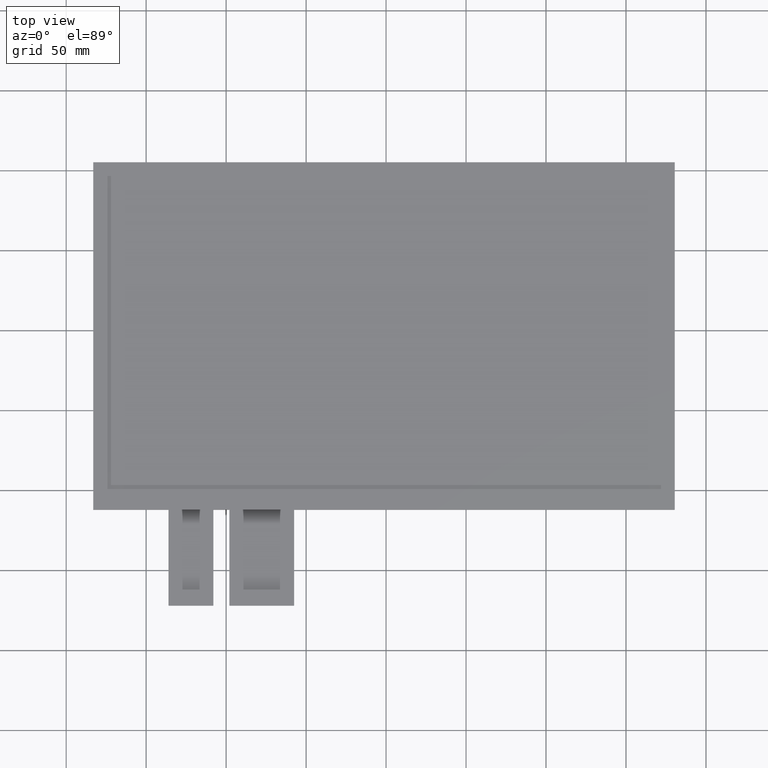
[diagram: clean part render]
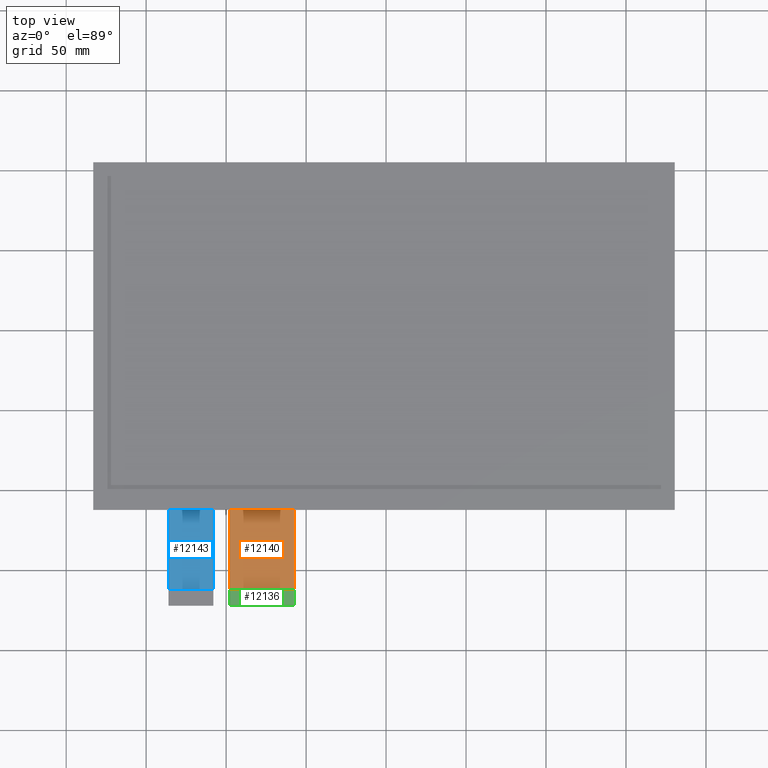
[diagram: same view with three faces highlighted in distinct colors, each labeled with its STEP entity id]
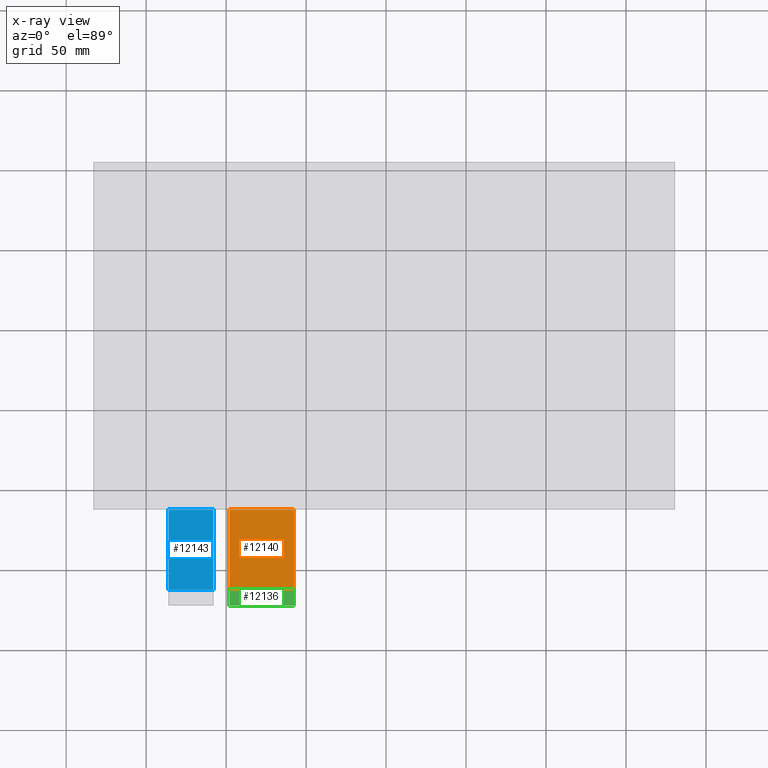
[diagram: x-ray of the same camera — body ghosted, the three highlighted faces saturated]
A machine part, top view with three faces highlighted in distinct colors.
The next image is the same camera in x-ray (body ghosted, the three faces saturated) — at least one of them is partly hidden behind the body in this view.
Their STEP definitions:

[orange] entity #12140 — the highlighted planar face has unit normal (0, 0, 1).
#682=PLANE('',#12746);
#1260=FACE_OUTER_BOUND('',#1838,.T.);
#1838=EDGE_LOOP('',(#11475,#11476,#11477,#11478));
#3514=LINE('',#18972,#5222);
#3517=LINE('',#18978,#5225);
#3527=LINE('',#18997,#5235);
#3528=LINE('',#18999,#5236);
#5222=VECTOR('',#15540,10.);
#5225=VECTOR('',#15545,10.);
#5235=VECTOR('',#15563,10.);
#5236=VECTOR('',#15566,10.);
#6396=VERTEX_POINT('',#18969);
#6397=VERTEX_POINT('',#18971);
#6399=VERTEX_POINT('',#18977);
#6404=VERTEX_POINT('',#18995);
#8090=EDGE_CURVE('',#6397,#6396,#3514,.T.);
#8093=EDGE_CURVE('',#6396,#6399,#3517,.T.);
#8103=EDGE_CURVE('',#6399,#6404,#3527,.T.);
#8104=EDGE_CURVE('',#6397,#6404,#3528,.T.);
#11475=ORIENTED_EDGE('',*,*,#8093,.T.);
#11476=ORIENTED_EDGE('',*,*,#8103,.T.);
#11477=ORIENTED_EDGE('',*,*,#8104,.F.);
#11478=ORIENTED_EDGE('',*,*,#8090,.T.);
#12140=ADVANCED_FACE('',(#1260),#682,.T.);
#12746=AXIS2_PLACEMENT_3D('',#18998,#15564,#15565);
#15540=DIRECTION('',(5.9211894646675E-16,-1.,0.));
#15545=DIRECTION('',(1.,0.,0.));
#15563=DIRECTION('',(4.44089209850063E-16,1.,0.));
#15564=DIRECTION('center_axis',(0.,0.,1.));
#15565=DIRECTION('ref_axis',(1.,0.,0.));
#15566=DIRECTION('',(1.,1.46564095660087E-16,0.));
#18969=CARTESIAN_POINT('',(-98.,-162.1,-1.1));
#18971=CARTESIAN_POINT('',(-98.,-112.1,-1.1));
#18972=CARTESIAN_POINT('',(-98.,-112.1,-1.1));
#18977=CARTESIAN_POINT('',(-57.5,-162.1,-1.1));
#18978=CARTESIAN_POINT('',(-67.625,-162.1,-1.1));
#18995=CARTESIAN_POINT('',(-57.4999999999999,-112.1,-1.1));
#18997=CARTESIAN_POINT('',(-57.4999999999999,-172.1,-1.1));
#18998=CARTESIAN_POINT('Origin',(-77.7499999999999,-142.1,-1.1));
#18999=CARTESIAN_POINT('',(51.3750000000001,-112.1,-1.1));

[blue] entity #12143 — the highlighted planar face has unit normal (0, 0, 1).
#685=PLANE('',#12749);
#1263=FACE_OUTER_BOUND('',#1841,.T.);
#1841=EDGE_LOOP('',(#11491,#11492,#11493,#11494));
#3506=LINE('',#18956,#5214);
#3521=LINE('',#18986,#5229);
#3532=LINE('',#19007,#5240);
#3533=LINE('',#19009,#5241);
#5214=VECTOR('',#15528,10.);
#5229=VECTOR('',#15553,10.);
#5240=VECTOR('',#15574,10.);
#5241=VECTOR('',#15577,10.);
#6390=VERTEX_POINT('',#18953);
#6391=VERTEX_POINT('',#18955);
#6401=VERTEX_POINT('',#18985);
#6406=VERTEX_POINT('',#19005);
#8082=EDGE_CURVE('',#6391,#6390,#3506,.T.);
#8097=EDGE_CURVE('',#6390,#6401,#3521,.T.);
#8108=EDGE_CURVE('',#6401,#6406,#3532,.T.);
#8109=EDGE_CURVE('',#6391,#6406,#3533,.T.);
#11491=ORIENTED_EDGE('',*,*,#8097,.T.);
#11492=ORIENTED_EDGE('',*,*,#8108,.T.);
#11493=ORIENTED_EDGE('',*,*,#8109,.F.);
#11494=ORIENTED_EDGE('',*,*,#8082,.T.);
#12143=ADVANCED_FACE('',(#1263),#685,.T.);
#12749=AXIS2_PLACEMENT_3D('',#19008,#15575,#15576);
#15528=DIRECTION('',(1.77635683940025E-15,-1.,0.));
#15553=DIRECTION('',(1.,0.,0.));
#15574=DIRECTION('',(-8.88178419700125E-16,1.,0.));
#15575=DIRECTION('center_axis',(0.,0.,1.));
#15576=DIRECTION('ref_axis',(1.,0.,0.));
#15577=DIRECTION('',(1.,1.46564095660087E-16,0.));
#18953=CARTESIAN_POINT('',(-136.,-162.1,-1.1));
#18955=CARTESIAN_POINT('',(-136.,-112.1,-1.1));
#18956=CARTESIAN_POINT('',(-136.,-112.1,-1.1));
#18985=CARTESIAN_POINT('',(-108.,-162.1,-1.1));
#18986=CARTESIAN_POINT('',(-115.,-162.1,-1.1));
#19005=CARTESIAN_POINT('',(-108.,-112.1,-1.1));
#19007=CARTESIAN_POINT('',(-108.,-172.1,-1.1));
#19008=CARTESIAN_POINT('Origin',(-122.,-142.1,-1.1));
#19009=CARTESIAN_POINT('',(29.2500000000001,-112.1,-1.1));

[green] entity #12136 — the highlighted planar face has unit normal (0, 0, 1).
#678=PLANE('',#12742);
#1256=FACE_OUTER_BOUND('',#1834,.T.);
#1834=EDGE_LOOP('',(#11451,#11452,#11453,#11454,#11455,#11456));
#1869=LINE('',#15669,#3577);
#3512=LINE('',#18968,#5220);
#3518=LINE('',#18980,#5226);
#3520=LINE('',#18983,#5228);
#3577=VECTOR('',#12785,10.);
#5220=VECTOR('',#15538,10.);
#5226=VECTOR('',#15546,10.);
#5228=VECTOR('',#15550,10.);
#5280=CIRCLE('',#12183,0.2);
#5281=CIRCLE('',#12187,0.2);
#5289=VERTEX_POINT('',#15654);
#5290=VERTEX_POINT('',#15656);
#5294=VERTEX_POINT('',#15668);
#5615=VERTEX_POINT('',#16312);
#6395=VERTEX_POINT('',#18967);
#6400=VERTEX_POINT('',#18979);
#6433=EDGE_CURVE('',#5289,#5290,#5280,.T.);
#6439=EDGE_CURVE('',#5294,#5290,#1869,.T.);
#6761=EDGE_CURVE('',#5294,#5615,#5281,.T.);
#8088=EDGE_CURVE('',#6395,#5615,#3512,.T.);
#8094=EDGE_CURVE('',#6400,#6395,#3518,.T.);
#8096=EDGE_CURVE('',#5289,#6400,#3520,.T.);
#11451=ORIENTED_EDGE('',*,*,#6433,.F.);
#11452=ORIENTED_EDGE('',*,*,#8096,.T.);
#11453=ORIENTED_EDGE('',*,*,#8094,.T.);
#11454=ORIENTED_EDGE('',*,*,#8088,.T.);
#11455=ORIENTED_EDGE('',*,*,#6761,.F.);
#11456=ORIENTED_EDGE('',*,*,#6439,.T.);
#12136=ADVANCED_FACE('',(#1256),#678,.T.);
#12183=AXIS2_PLACEMENT_3D('',#15657,#12774,#12775);
#12187=AXIS2_PLACEMENT_3D('',#16313,#13109,#13110);
#12742=AXIS2_PLACEMENT_3D('',#18982,#15548,#15549);
#12774=DIRECTION('center_axis',(0.,0.,-1.));
#12775=DIRECTION('ref_axis',(0.707106781186579,-0.707106781186516,0.));
#12785=DIRECTION('',(1.,0.,0.));
#13109=DIRECTION('center_axis',(0.,0.,-1.));
#13110=DIRECTION('ref_axis',(-0.70710678118661,-0.707106781186485,0.));
#15538=DIRECTION('',(0.,-1.,0.));
#15546=DIRECTION('',(-1.,0.,0.));
#15548=DIRECTION('center_axis',(0.,0.,1.));
#15549=DIRECTION('ref_axis',(1.,0.,0.));
#15550=DIRECTION('',(-8.88178419700125E-16,1.,0.));
#15654=CARTESIAN_POINT('',(-57.4999999999999,-171.9,-0.8));
#15656=CARTESIAN_POINT('',(-57.6999999999999,-172.1,-0.8));
#15657=CARTESIAN_POINT('Origin',(-57.6999999999999,-171.9,-0.8));
#15668=CARTESIAN_POINT('',(-97.8,-172.1,-0.8));
#15669=CARTESIAN_POINT('',(-98.,-172.1,-0.8));
#16312=CARTESIAN_POINT('',(-98.,-171.9,-0.8));
#16313=CARTESIAN_POINT('Origin',(-97.8,-171.9,-0.8));
#18967=CARTESIAN_POINT('',(-98.,-162.1,-0.8));
#18968=CARTESIAN_POINT('',(-98.,-162.1,-0.8));
#18979=CARTESIAN_POINT('',(-57.5,-162.1,-0.8));
#18980=CARTESIAN_POINT('',(-57.5,-162.1,-0.8));
#18982=CARTESIAN_POINT('Origin',(-77.7499999999999,-167.1,-0.8));
#18983=CARTESIAN_POINT('',(-57.4999999999999,-172.1,-0.8));